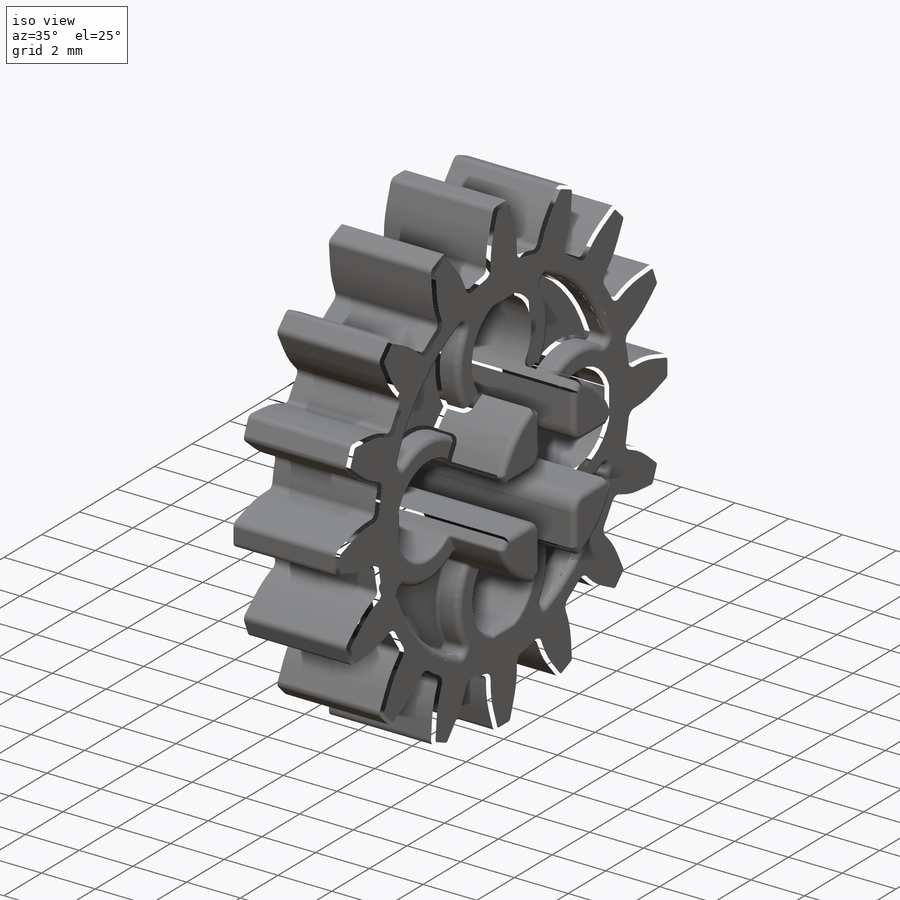
[diagram: iso view]
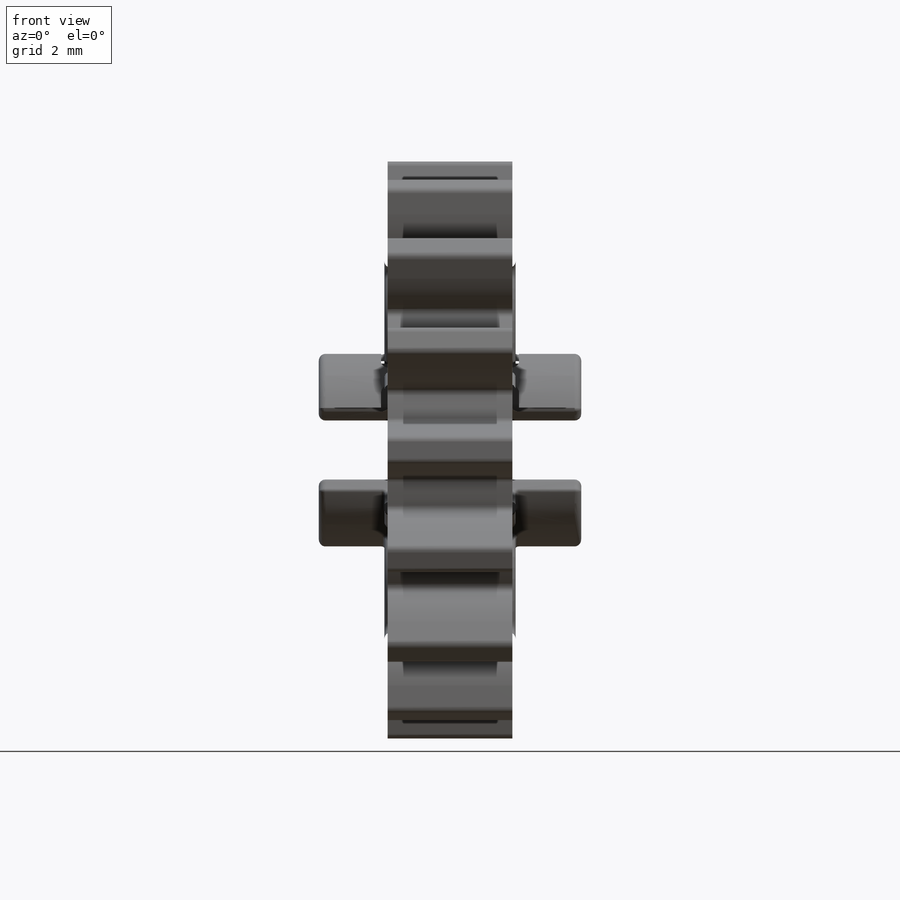
[diagram: front view]
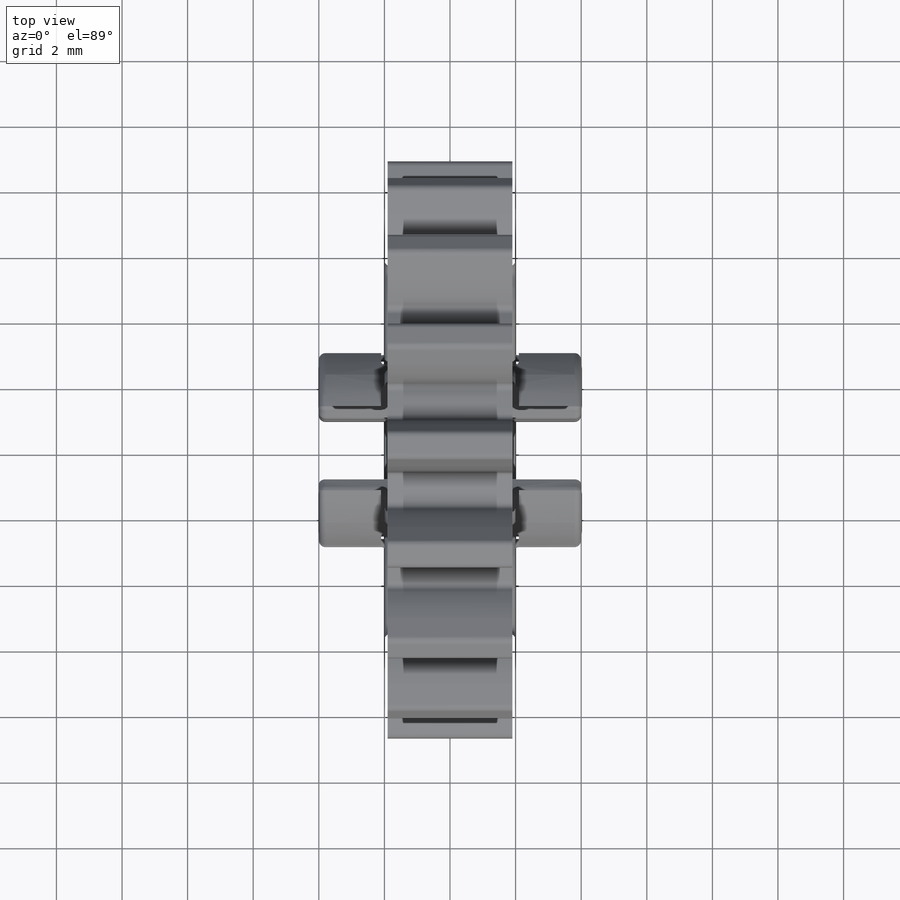
[diagram: top view]
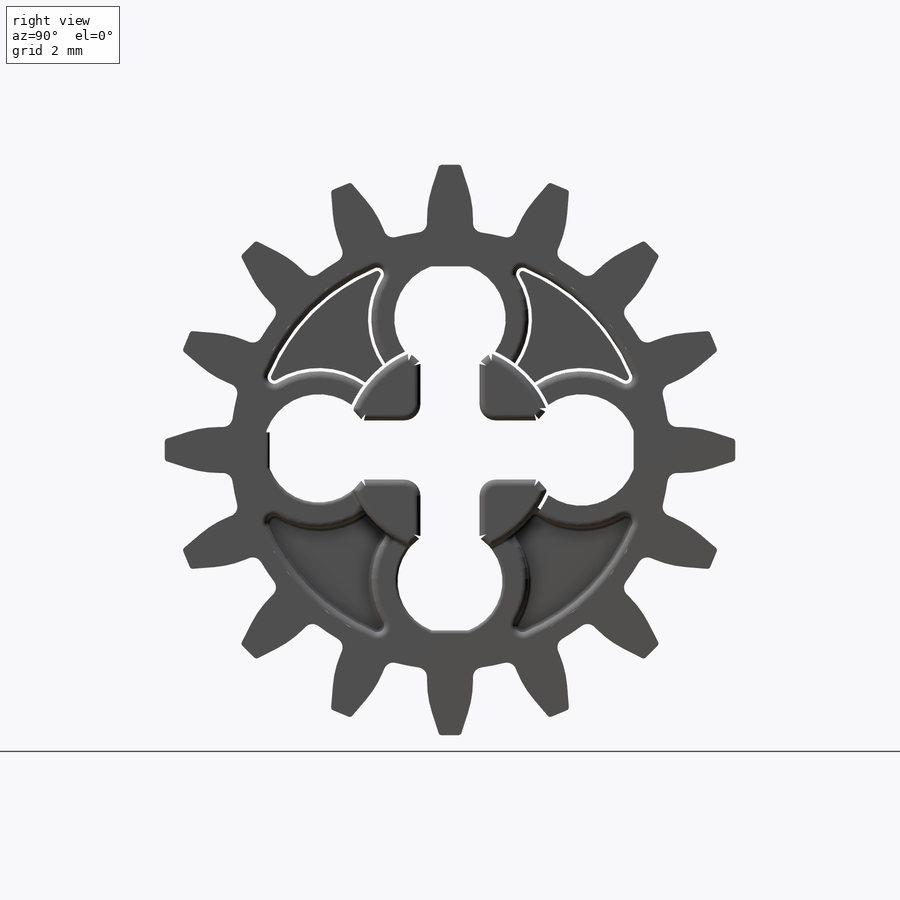
[diagram: right view]
SOLIDWORKS PART (.sldprt)
format: sldprt  version: not decoded by parser v0  size: 2,559,488 bytes
history: native  units: mm
features: sketch x5, fillet x5, extrude x4, plane x3, material x1, cut_extrude x1, mirror x1, pattern_circular x1 (+10 scaffold rows collapsed)
feature tree (31):
  scaffold x10  (default folders/planes/origin — collapsed)
  material  "PET"
  plane  "Alzado"
  plane  "Planta"
  plane  "Vista lateral"
  sketch  "Croquis1"  dims[c1.D1=13.6mm c1.D2=3.2mm c1.D9=8.0mm c1.D3=4.0mm c1.D5=0.9mm c1.D6=0.9mm c1.D7=1.8mm c1.D8=1.8mm c2.D9=4.0mm c2.D4=4.0]
  extrude  "Saliente-Extruir1"  Depth=4mm
  sketch  "Croquis2"  dims[D1=3.2mm]
  extrude  "Saliente-Extruir2"  Depth=2mm
  sketch  "Croquis3"  dims[c1.D1=6.0mm c1.D2=2.8mm c1.D3=2.4mm c2.D2=4.8mm]
  cut_extrude  "Cortar-Extruir1"  Depth=0.8mm
  mirror  "Simetría1"
  sketch  "Profile"  dims[c1.D1=6.8mm c1.D3=15.2mm c1.D4=17.6mm c2.D1=0.4mm c2.D2=0.8mm]
  extrude  "Tooth"  Depth=4mm
  fillet  "Redondeo1"  Radius=3.2mm
  fillet  "Redondeo2"  Radius=0.2mm
  pattern_circular  "Matriz Teeth"  Count=16 Angle=360deg
  sketch  "Croquis4"  dims[D1=1.5mm]
  extrude  "Saliente-Extruir3"  [1 undecoded]
  fillet  "Redondeo3"  Radius=0.5mm
  fillet  "Redondeo4"  Radius=0.2mm
  fillet  "Redondeo5"  Radius=0.1mm
decode coverage: 15 of 17 modeling features carry decoded parameters
note: 1 parameter value undecoded
note: suppression state not decoded; provenance and decode notes live in map.json
